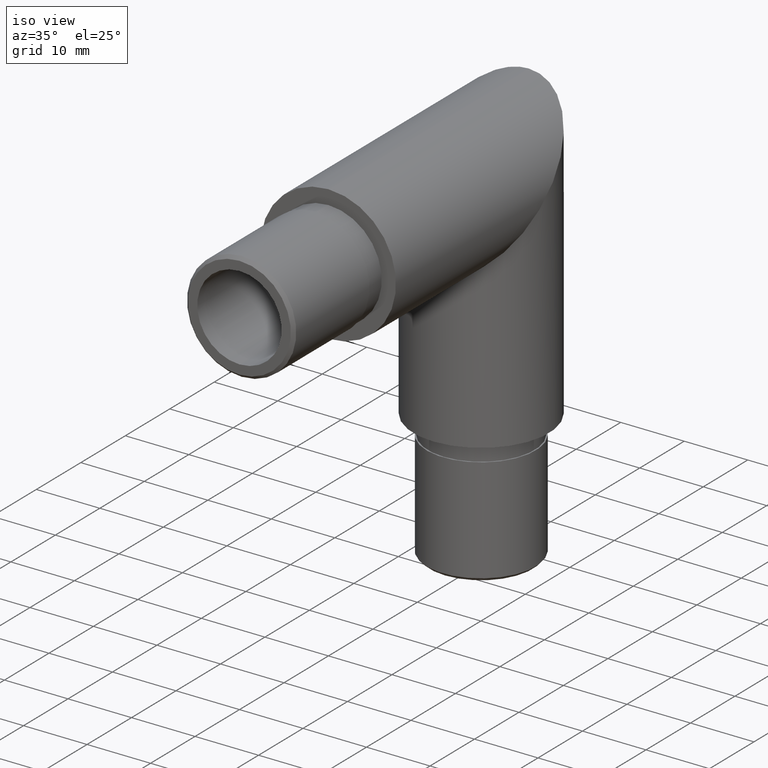
[diagram: clean part render]
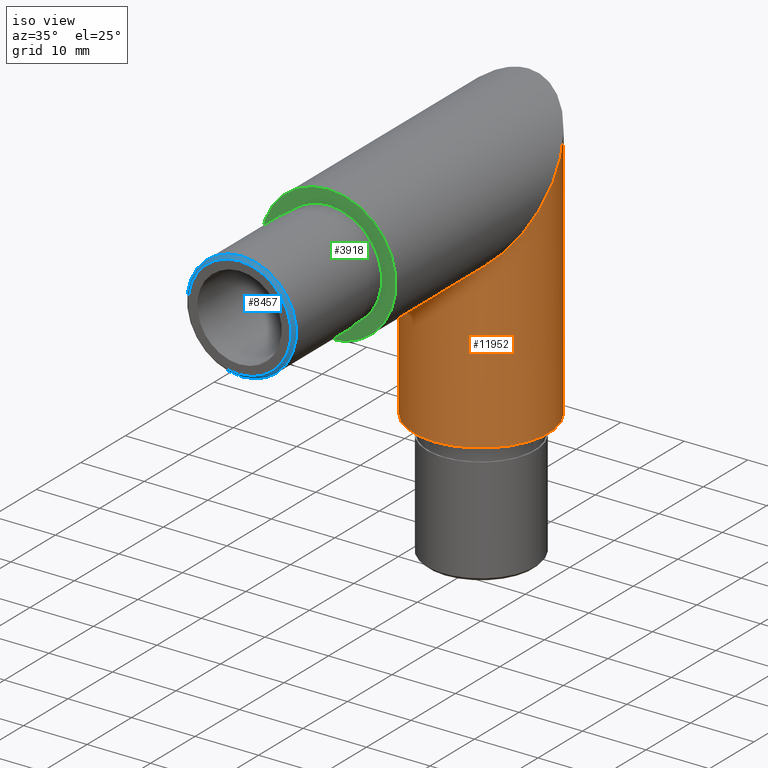
[diagram: same view with three faces highlighted in distinct colors, each labeled with its STEP entity id]
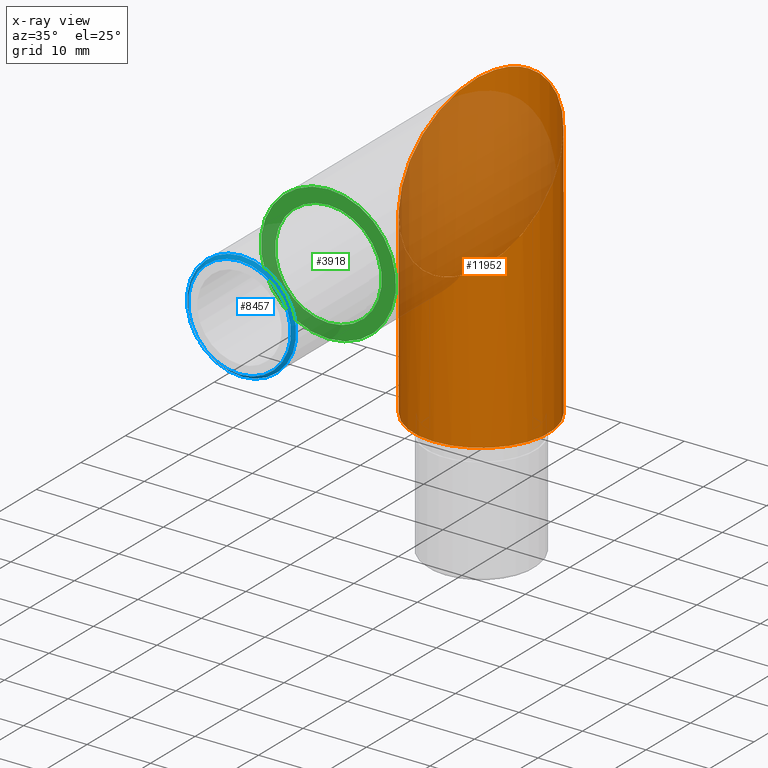
[diagram: x-ray of the same camera — body ghosted, the three highlighted faces saturated]
A machine part, iso view with three faces highlighted in distinct colors.
The next image is the same camera in x-ray (body ghosted, the three faces saturated) — at least one of them is partly hidden behind the body in this view.
Their STEP definitions:

[orange] entity #11952 — the highlighted cylindrical surface (bore or boss wall) has radius 10.65 mm, axis along (0, -0, -1).
#204 = CARTESIAN_POINT ( 'NONE',  ( 0.0000000000000000000, 23.69999999999995700, -10.65000000000000000 ) ) ;
#220 = EDGE_LOOP ( 'NONE', ( #9058 ) ) ;
#368 = CARTESIAN_POINT ( 'NONE',  ( 21.29999999999999700, 45.00000000000002800, 10.65000000000000400 ) ) ;
#375 = VERTEX_POINT ( 'NONE', #5280 ) ;
#601 = DIRECTION ( 'NONE',  ( -0.0000000000000000000, 3.232090319141650300E-015, 1.000000000000000000 ) ) ;
#785 = CARTESIAN_POINT ( 'NONE',  ( 0.0000000000000000000, 34.34999999999999400, 0.0000000000000000000 ) ) ;
#823 = DIRECTION ( 'NONE',  ( 0.0000000000000000000, -3.232090319141650300E-015, -1.000000000000000000 ) ) ;
#1425 = DIRECTION ( 'NONE',  ( 0.0000000000000000000, 1.000000000000000000, -3.257696668501046200E-015 ) ) ;
#1949 = FACE_OUTER_BOUND ( 'NONE', #4991, .T. ) ;
#2416 = CARTESIAN_POINT ( 'NONE',  ( 0.0000000000000000000, 34.34999999999988100, -34.34999999999999400 ) ) ;
#2963 = CYLINDRICAL_SURFACE ( 'NONE', #8329, 10.65000000000000000 ) ;
#3251 = VERTEX_POINT ( 'NONE', #8105 ) ;
#3455 = DIRECTION ( 'NONE',  ( 0.0000000000000000000, 1.000000000000000000, -3.232090319141650300E-015 ) ) ;
#3598 = EDGE_CURVE ( 'NONE', #375, #375, #4746, .T. ) ;
#3833 = FACE_OUTER_BOUND ( 'NONE', #220, .T. ) ;
#3876 = CARTESIAN_POINT ( 'NONE',  ( 0.0000000000000000000, 23.69999999999995700, -10.65000000000000000 ) ) ;
#4432 = ORIENTED_EDGE ( 'NONE', *, *, #3598, .T. ) ;
#4746 =( BOUNDED_CURVE ( )  B_SPLINE_CURVE ( 3, ( #3876, #7588, #9459, #6776, #368, #4928, #204 ),
 .UNSPECIFIED., .T., .F. ) 
 B_SPLINE_CURVE_WITH_KNOTS ( ( 4, 3, 4 ),
 ( 0.0000000000000000000, 3.141592653589793100, 6.283185307179586200 ),
 .UNSPECIFIED. ) 
 CURVE ( )  GEOMETRIC_REPRESENTATION_ITEM ( )  RATIONAL_B_SPLINE_CURVE ( ( 1.000000000000000000, 0.3333333333333333700, 0.3333333333333333700, 1.000000000000000000, 0.3333333333333333700, 0.3333333333333333700, 1.000000000000000000 ) ) 
 REPRESENTATION_ITEM ( '' )  );
#4928 = CARTESIAN_POINT ( 'NONE',  ( 21.29999999999999700, 23.69999999999995700, -10.65000000000000000 ) ) ;
#4991 = EDGE_LOOP ( 'NONE', ( #4432 ) ) ;
#5280 = CARTESIAN_POINT ( 'NONE',  ( 0.0000000000000000000, 23.69999999999995700, -10.65000000000000000 ) ) ;
#6776 = CARTESIAN_POINT ( 'NONE',  ( -1.304248841091931300E-015, 45.00000000000002800, 10.65000000000000000 ) ) ;
#7588 = CARTESIAN_POINT ( 'NONE',  ( -21.29999999999999700, 23.69999999999995700, -10.65000000000000000 ) ) ;
#8105 = CARTESIAN_POINT ( 'NONE',  ( 0.0000000000000000000, 44.99999999999987900, -34.35000000000003000 ) ) ;
#8329 = AXIS2_PLACEMENT_3D ( 'NONE', #785, #823, #3455 ) ;
#8404 = EDGE_CURVE ( 'NONE', #3251, #3251, #8549, .T. ) ;
#8549 = CIRCLE ( 'NONE', #8809, 10.65000000000000000 ) ;
#8809 = AXIS2_PLACEMENT_3D ( 'NONE', #2416, #601, #1425 ) ;
#9058 = ORIENTED_EDGE ( 'NONE', *, *, #8404, .T. ) ;
#9459 = CARTESIAN_POINT ( 'NONE',  ( -21.29999999999999700, 45.00000000000002800, 10.64999999999999700 ) ) ;
#11952 = ADVANCED_FACE ( 'NONE', ( #1949, #3833 ), #2963, .T. ) ;

[blue] entity #8457 — the highlighted conical surface has half-angle 45 deg.
#520 = VERTEX_POINT ( 'NONE', #9074 ) ;
#1928 = CIRCLE ( 'NONE', #4860, 8.599999999999999600 ) ;
#2566 = CARTESIAN_POINT ( 'NONE',  ( 0.0000000000000000000, -19.49999999999997900, -8.599999999999999600 ) ) ;
#2580 = CARTESIAN_POINT ( 'NONE',  ( 0.0000000000000000000, -19.49999999999997900, 0.0000000000000000000 ) ) ;
#3257 = DIRECTION ( 'NONE',  ( 0.0000000000000000000, 0.0000000000000000000, 1.000000000000000000 ) ) ;
#3811 = EDGE_LOOP ( 'NONE', ( #5909 ) ) ;
#4149 = EDGE_CURVE ( 'NONE', #520, #520, #6411, .T. ) ;
#4860 = AXIS2_PLACEMENT_3D ( 'NONE', #2580, #7855, #10626 ) ;
#5104 = EDGE_LOOP ( 'NONE', ( #9768 ) ) ;
#5879 = DIRECTION ( 'NONE',  ( 0.0000000000000000000, -1.000000000000000000, 0.0000000000000000000 ) ) ;
#5902 = EDGE_CURVE ( 'NONE', #7895, #7895, #1928, .T. ) ;
#5909 = ORIENTED_EDGE ( 'NONE', *, *, #5902, .F. ) ;
#6411 = CIRCLE ( 'NONE', #11596, 8.099999999999981900 ) ;
#6845 = CARTESIAN_POINT ( 'NONE',  ( 0.0000000000000000000, -20.00000000000000000, 0.0000000000000000000 ) ) ;
#7234 = FACE_OUTER_BOUND ( 'NONE', #3811, .T. ) ;
#7855 = DIRECTION ( 'NONE',  ( 0.0000000000000000000, 1.000000000000000000, 0.0000000000000000000 ) ) ;
#7895 = VERTEX_POINT ( 'NONE', #2566 ) ;
#8457 = ADVANCED_FACE ( 'NONE', ( #7234, #10725 ), #9984, .T. ) ;
#8566 = AXIS2_PLACEMENT_3D ( 'NONE', #11608, #11646, #3257 ) ;
#9074 = CARTESIAN_POINT ( 'NONE',  ( 0.0000000000000000000, -20.00000000000000000, -8.099999999999981900 ) ) ;
#9480 = DIRECTION ( 'NONE',  ( 0.0000000000000000000, 0.0000000000000000000, -1.000000000000000000 ) ) ;
#9768 = ORIENTED_EDGE ( 'NONE', *, *, #4149, .F. ) ;
#9984 = CONICAL_SURFACE ( 'NONE', #8566, 8.099999999999981900, 0.7853981633974447300 ) ;
#10626 = DIRECTION ( 'NONE',  ( 0.0000000000000000000, 0.0000000000000000000, -1.000000000000000000 ) ) ;
#10725 = FACE_BOUND ( 'NONE', #5104, .T. ) ;
#11596 = AXIS2_PLACEMENT_3D ( 'NONE', #6845, #5879, #9480 ) ;
#11608 = CARTESIAN_POINT ( 'NONE',  ( 0.0000000000000000000, -20.00000000000000000, 0.0000000000000000000 ) ) ;
#11646 = DIRECTION ( 'NONE',  ( 0.0000000000000000000, 1.000000000000000000, 0.0000000000000000000 ) ) ;

[green] entity #3918 — the highlighted planar face has unit normal (0, 1, 0).
#373 = FACE_BOUND ( 'NONE', #8067, .T. ) ;
#715 = CARTESIAN_POINT ( 'NONE',  ( 0.0000000000000000000, 0.0000000000000000000, 10.65000000000000000 ) ) ;
#836 = AXIS2_PLACEMENT_3D ( 'NONE', #9741, #2646, #3215 ) ;
#862 = DIRECTION ( 'NONE',  ( 0.0000000000000000000, 0.0000000000000000000, 1.000000000000000000 ) ) ;
#1087 = CARTESIAN_POINT ( 'NONE',  ( 0.0000000000000000000, 0.0000000000000000000, 0.0000000000000000000 ) ) ;
#1312 = ORIENTED_EDGE ( 'NONE', *, *, #4769, .F. ) ;
#1470 = PLANE ( 'NONE',  #836 ) ;
#2646 = DIRECTION ( 'NONE',  ( 0.0000000000000000000, 1.000000000000000000, 0.0000000000000000000 ) ) ;
#3215 = DIRECTION ( 'NONE',  ( 0.0000000000000000000, -0.0000000000000000000, 1.000000000000000000 ) ) ;
#3613 = CARTESIAN_POINT ( 'NONE',  ( 0.0000000000000000000, 0.0000000000000000000, 0.0000000000000000000 ) ) ;
#3798 = DIRECTION ( 'NONE',  ( -0.0000000000000000000, -1.000000000000000000, -0.0000000000000000000 ) ) ;
#3918 = ADVANCED_FACE ( 'NONE', ( #5283, #373 ), #1470, .F. ) ;
#3966 = VERTEX_POINT ( 'NONE', #5354 ) ;
#4769 = EDGE_CURVE ( 'NONE', #5149, #5149, #8732, .T. ) ;
#5149 = VERTEX_POINT ( 'NONE', #715 ) ;
#5283 = FACE_OUTER_BOUND ( 'NONE', #8723, .T. ) ;
#5354 = CARTESIAN_POINT ( 'NONE',  ( 0.0000000000000000000, 0.0000000000000000000, 8.400000000000000400 ) ) ;
#5465 = DIRECTION ( 'NONE',  ( 0.0000000000000000000, 1.000000000000000000, 0.0000000000000000000 ) ) ;
#6089 = AXIS2_PLACEMENT_3D ( 'NONE', #1087, #3798, #6619 ) ;
#6190 = AXIS2_PLACEMENT_3D ( 'NONE', #3613, #5465, #862 ) ;
#6619 = DIRECTION ( 'NONE',  ( 0.0000000000000000000, 0.0000000000000000000, 1.000000000000000000 ) ) ;
#8067 = EDGE_LOOP ( 'NONE', ( #8362 ) ) ;
#8362 = ORIENTED_EDGE ( 'NONE', *, *, #11518, .F. ) ;
#8723 = EDGE_LOOP ( 'NONE', ( #1312 ) ) ;
#8732 = CIRCLE ( 'NONE', #6190, 10.65000000000000000 ) ;
#9445 = CIRCLE ( 'NONE', #6089, 8.400000000000000400 ) ;
#9741 = CARTESIAN_POINT ( 'NONE',  ( 0.0000000000000000000, 0.0000000000000000000, 0.0000000000000000000 ) ) ;
#11518 = EDGE_CURVE ( 'NONE', #3966, #3966, #9445, .T. ) ;